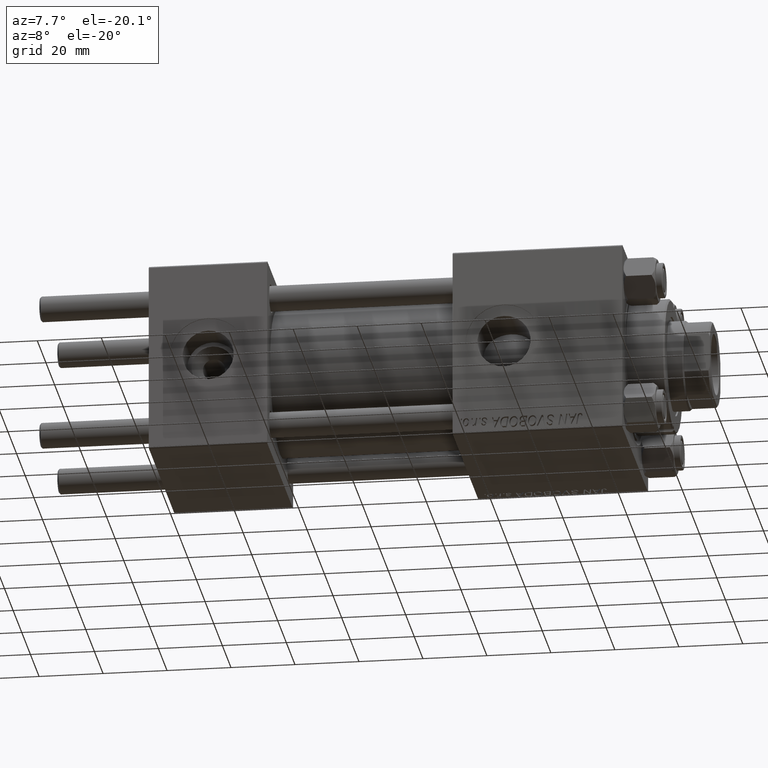
[diagram: clean part render]
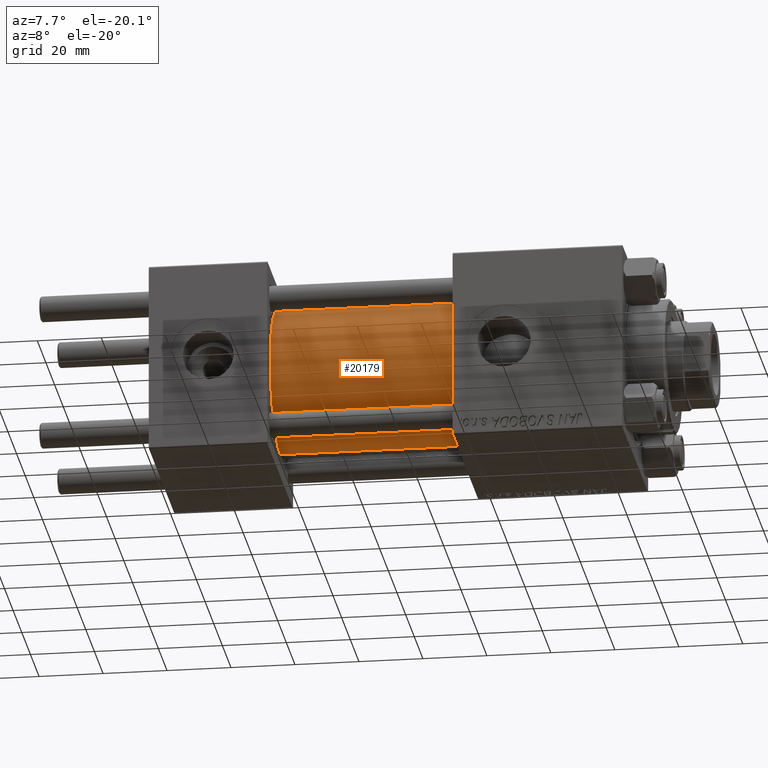
[diagram: same view with one face highlighted and labeled with its STEP entity id]
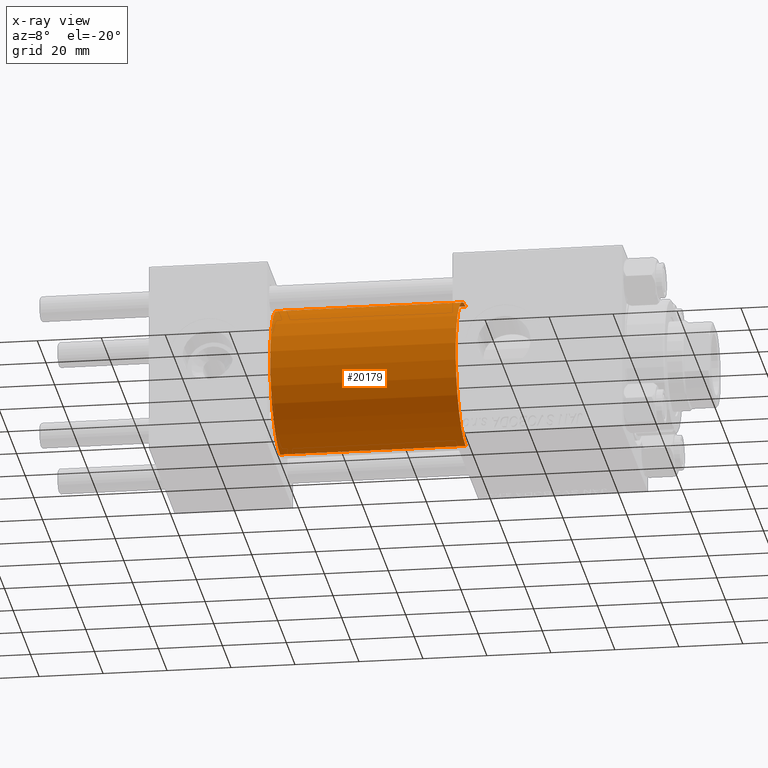
[diagram: x-ray of the same camera — body ghosted, the highlighted face saturated]
A machine part, auxiliary view. The second image highlights one B-rep face of the part: STEP entity #20179.
The next image is the same camera in x-ray: the body ghosted, the highlighted face saturated — about 0% of this face is hidden behind the body in this view.
In plain terms, the highlighted cylindrical surface (partial cylindrical patch) has radius 23 mm, axis along (-1, -0, -0).
Its self-contained STEP definition (entity closure, byte-faithful):
#1680 = LINE ( 'NONE', #34122, #51952 ) ;
#1996 = LINE ( 'NONE', #50541, #35634 ) ;
#2381 = VERTEX_POINT ( 'NONE', #34409 ) ;
#2857 = DIRECTION ( 'NONE',  ( 0.000000000000000000, 0.000000000000000000, 1.000000000000000000 ) ) ;
#3189 = DIRECTION ( 'NONE',  ( 0.000000000000000000, 0.000000000000000000, 1.000000000000000000 ) ) ;
#3800 = AXIS2_PLACEMENT_3D ( 'NONE', #43293, #7135, #3189 ) ;
#4146 = ORIENTED_EDGE ( 'NONE', *, *, #4900, .T. ) ;
#4900 = EDGE_CURVE ( 'NONE', #45801, #40331, #40876, .T. ) ;
#7135 = DIRECTION ( 'NONE',  ( 1.000000000000000000, -0.000000000000000000, 0.000000000000000000 ) ) ;
#10209 = ORIENTED_EDGE ( 'NONE', *, *, #19425, .F. ) ;
#13035 = CARTESIAN_POINT ( 'NONE',  ( 37.00000000000000000, 2.816687638038911957E-15, -23.00000000000000000 ) ) ;
#13221 = AXIS2_PLACEMENT_3D ( 'NONE', #18670, #34519, #2857 ) ;
#13319 = CARTESIAN_POINT ( 'NONE',  ( 95.00000000000000000, 0.000000000000000000, 0.000000000000000000 ) ) ;
#14712 = CARTESIAN_POINT ( 'NONE',  ( 37.00000000000000000, 0.000000000000000000, 23.00000000000000000 ) ) ;
#14977 = CYLINDRICAL_SURFACE ( 'NONE', #13221, 23.00000000000000000 ) ;
#17543 = EDGE_LOOP ( 'NONE', ( #10209, #41149, #36123, #4146 ) ) ;
#18075 = DIRECTION ( 'NONE',  ( -1.000000000000000000, -0.000000000000000000, -0.000000000000000000 ) ) ;
#18670 = CARTESIAN_POINT ( 'NONE',  ( 95.00000000000000000, 0.000000000000000000, 0.000000000000000000 ) ) ;
#19425 = EDGE_CURVE ( 'NONE', #2381, #40331, #1680, .T. ) ;
#20179 = ADVANCED_FACE ( 'NONE', ( #34787 ), #14977, .T. ) ;
#20198 = DIRECTION ( 'NONE',  ( 0.000000000000000000, 0.000000000000000000, -1.000000000000000000 ) ) ;
#24211 = CARTESIAN_POINT ( 'NONE',  ( 95.00000000000000000, 0.000000000000000000, 23.00000000000000000 ) ) ;
#33136 = DIRECTION ( 'NONE',  ( 1.000000000000000000, 0.000000000000000000, 0.000000000000000000 ) ) ;
#33778 = EDGE_CURVE ( 'NONE', #45915, #2381, #38882, .T. ) ;
#34122 = CARTESIAN_POINT ( 'NONE',  ( 95.00000000000000000, 2.816687638038911957E-15, -23.00000000000000000 ) ) ;
#34409 = CARTESIAN_POINT ( 'NONE',  ( 95.00000000000000000, 2.816687638038911957E-15, -23.00000000000000000 ) ) ;
#34519 = DIRECTION ( 'NONE',  ( -1.000000000000000000, -0.000000000000000000, -0.000000000000000000 ) ) ;
#34787 = FACE_OUTER_BOUND ( 'NONE', #17543, .T. ) ;
#35634 = VECTOR ( 'NONE', #18075, 1000.000000000000000 ) ;
#36123 = ORIENTED_EDGE ( 'NONE', *, *, #49148, .T. ) ;
#38882 = CIRCLE ( 'NONE', #49829, 23.00000000000000000 ) ;
#40331 = VERTEX_POINT ( 'NONE', #13035 ) ;
#40876 = CIRCLE ( 'NONE', #3800, 23.00000000000000000 ) ;
#41149 = ORIENTED_EDGE ( 'NONE', *, *, #33778, .F. ) ;
#43293 = CARTESIAN_POINT ( 'NONE',  ( 37.00000000000000000, 0.000000000000000000, 0.000000000000000000 ) ) ;
#45801 = VERTEX_POINT ( 'NONE', #14712 ) ;
#45915 = VERTEX_POINT ( 'NONE', #24211 ) ;
#49148 = EDGE_CURVE ( 'NONE', #45915, #45801, #1996, .T. ) ;
#49829 = AXIS2_PLACEMENT_3D ( 'NONE', #13319, #33136, #20198 ) ;
#50224 = DIRECTION ( 'NONE',  ( -1.000000000000000000, -0.000000000000000000, -0.000000000000000000 ) ) ;
#50541 = CARTESIAN_POINT ( 'NONE',  ( 95.00000000000000000, 0.000000000000000000, 23.00000000000000000 ) ) ;
#51952 = VECTOR ( 'NONE', #50224, 1000.000000000000000 ) ;